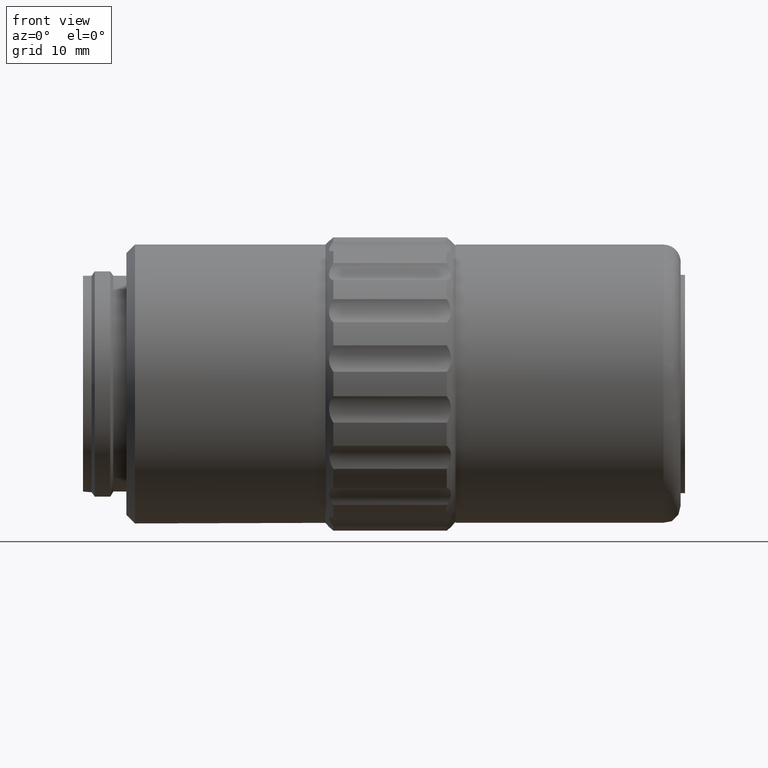
[diagram: clean part render]
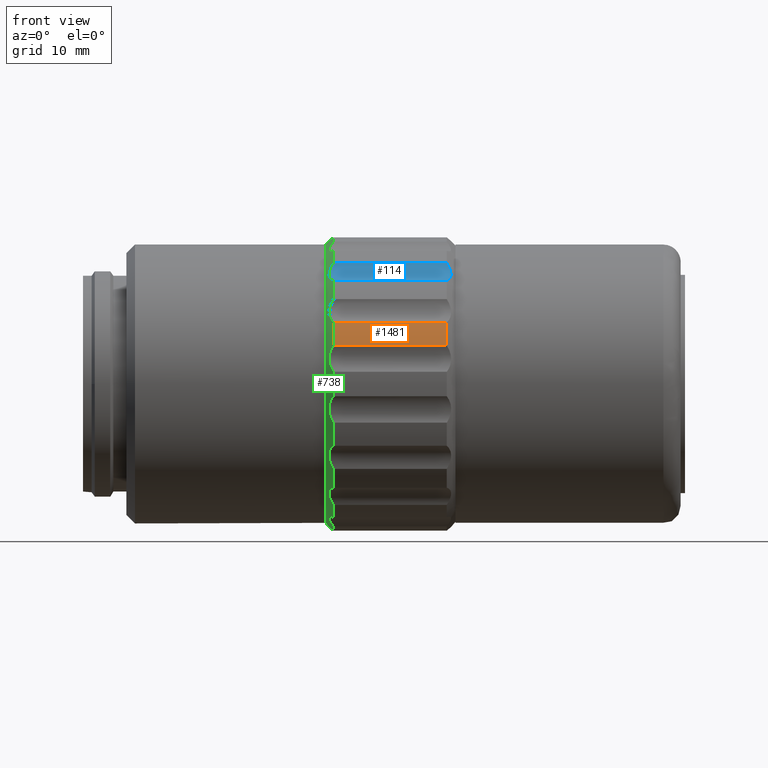
[diagram: same view with three faces highlighted in distinct colors, each labeled with its STEP entity id]
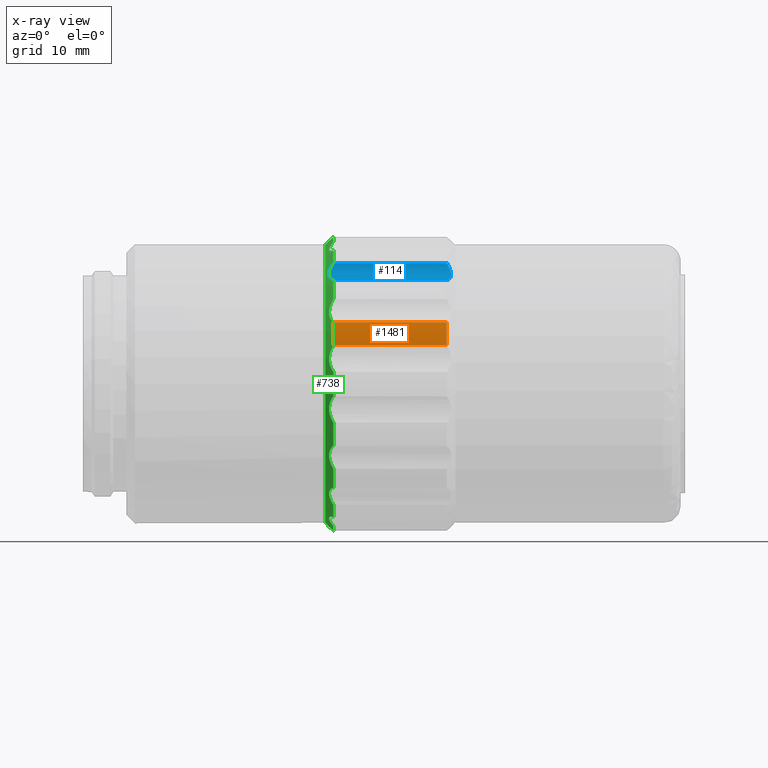
[diagram: x-ray of the same camera — body ghosted, the three highlighted faces saturated]
A machine part, front view with three faces highlighted in distinct colors.
The next image is the same camera in x-ray (body ghosted, the three faces saturated) — at least one of them is partly hidden behind the body in this view.
Their STEP definitions:

[orange] entity #1481 — the highlighted cylindrical surface (partial cylindrical patch) has radius 17 mm, axis along (-1, 0, 0).
#12 = EDGE_CURVE ( 'NONE', #287, #401, #1774, .T. ) ;
#137 = DIRECTION ( 'NONE',  ( -1.000000000000000000, 0.000000000000000000, 0.000000000000000000 ) ) ;
#184 = CARTESIAN_POINT ( 'NONE',  ( 53.58686043487880823, 29.61726367720591568, 4.463034991433923793 ) ) ;
#185 = AXIS2_PLACEMENT_3D ( 'NONE', #598, #1263, #437 ) ;
#287 = VERTEX_POINT ( 'NONE', #380 ) ;
#380 = CARTESIAN_POINT ( 'NONE',  ( 32.44685803487879383, 30.58621645913232356, 7.125210880294359228 ) ) ;
#401 = VERTEX_POINT ( 'NONE', #1611 ) ;
#423 = CARTESIAN_POINT ( 'NONE',  ( 25.94685803487879738, 30.58621645913229870, 7.125210880294325477 ) ) ;
#437 = DIRECTION ( 'NONE',  ( 0.000000000000000000, 1.000000000000000000, -7.105427357601001859E-15 ) ) ;
#479 = EDGE_LOOP ( 'NONE', ( #2091, #1925, #1167, #575 ) ) ;
#486 = DIRECTION ( 'NONE',  ( 0.000000000000000000, 0.000000000000000000, 1.000000000000000000 ) ) ;
#505 = DIRECTION ( 'NONE',  ( 1.000000000000000000, -0.000000000000000000, -0.000000000000000000 ) ) ;
#575 = ORIENTED_EDGE ( 'NONE', *, *, #1209, .F. ) ;
#598 = CARTESIAN_POINT ( 'NONE',  ( 32.44685803487880094, 46.02096199999999726, 0.000000000000000000 ) ) ;
#797 = VECTOR ( 'NONE', #137, 1000.000000000000000 ) ;
#825 = DIRECTION ( 'NONE',  ( 0.000000000000000000, 0.000000000000000000, 1.000000000000000000 ) ) ;
#888 = EDGE_CURVE ( 'NONE', #401, #2113, #979, .T. ) ;
#979 = CIRCLE ( 'NONE', #1502, 17.00000000000000000 ) ;
#1105 = CARTESIAN_POINT ( 'NONE',  ( 19.34685803487881017, 29.61726367720591924, 4.463034991433914911 ) ) ;
#1123 = DIRECTION ( 'NONE',  ( -1.000000000000000000, 0.000000000000000000, 0.000000000000000000 ) ) ;
#1146 = CYLINDRICAL_SURFACE ( 'NONE', #1256, 17.00000000000000000 ) ;
#1167 = ORIENTED_EDGE ( 'NONE', *, *, #1916, .T. ) ;
#1209 = EDGE_CURVE ( 'NONE', #287, #1350, #1917, .T. ) ;
#1256 = AXIS2_PLACEMENT_3D ( 'NONE', #1803, #1123, #486 ) ;
#1263 = DIRECTION ( 'NONE',  ( 1.000000000000000000, -0.000000000000000000, -0.000000000000000000 ) ) ;
#1350 = VERTEX_POINT ( 'NONE', #2036 ) ;
#1481 = ADVANCED_FACE ( 'NONE', ( #2139 ), #1146, .T. ) ;
#1502 = AXIS2_PLACEMENT_3D ( 'NONE', #2000, #505, #825 ) ;
#1530 = DIRECTION ( 'NONE',  ( 1.000000000000000000, -0.000000000000000000, -0.000000000000000000 ) ) ;
#1611 = CARTESIAN_POINT ( 'NONE',  ( 19.34685803487881017, 30.58621645913229514, 7.125210880294345905 ) ) ;
#1704 = VECTOR ( 'NONE', #1530, 1000.000000000000000 ) ;
#1774 = LINE ( 'NONE', #423, #797 ) ;
#1803 = CARTESIAN_POINT ( 'NONE',  ( 25.94685803487879738, 46.02096199999999726, 0.000000000000000000 ) ) ;
#1916 = EDGE_CURVE ( 'NONE', #2113, #1350, #2001, .T. ) ;
#1917 = CIRCLE ( 'NONE', #185, 16.99999999999998579 ) ;
#1925 = ORIENTED_EDGE ( 'NONE', *, *, #888, .T. ) ;
#2000 = CARTESIAN_POINT ( 'NONE',  ( 19.34685803487879596, 46.02096199999999726, 0.000000000000000000 ) ) ;
#2001 = LINE ( 'NONE', #184, #1704 ) ;
#2036 = CARTESIAN_POINT ( 'NONE',  ( 32.44685803487877962, 29.61726367720591568, 4.463034991433923793 ) ) ;
#2091 = ORIENTED_EDGE ( 'NONE', *, *, #12, .T. ) ;
#2113 = VERTEX_POINT ( 'NONE', #1105 ) ;
#2139 = FACE_OUTER_BOUND ( 'NONE', #479, .T. ) ;

[blue] entity #114 — the highlighted cylindrical surface (edge-blend (fillet) strip) has radius 3 mm, axis along (-1, 0, 0).
#35 = CARTESIAN_POINT ( 'NONE',  ( 18.90699781735015961, 34.94694193895058731, 12.31354536760547447 ) ) ;
#70 = VERTEX_POINT ( 'NONE', #1337 ) ;
#90 = CARTESIAN_POINT ( 'NONE',  ( 32.85273454226021528, 34.82682132065500724, 12.25041840084325884 ) ) ;
#114 = ADVANCED_FACE ( 'NONE', ( #1681 ), #1820, .F. ) ;
#204 = CARTESIAN_POINT ( 'NONE',  ( 18.85870489934780991, 35.62512614287680179, 12.82915025000380105 ) ) ;
#234 = CARTESIAN_POINT ( 'NONE',  ( 32.85210940846934591, 35.90193111884155996, 13.15323611948971916 ) ) ;
#315 = CARTESIAN_POINT ( 'NONE',  ( 25.94685803487879738, 33.95401115804232006, 11.97450196783886867 ) ) ;
#328 = DIRECTION ( 'NONE',  ( -1.000000000000000000, 0.000000000000000000, 0.000000000000000000 ) ) ;
#368 = CARTESIAN_POINT ( 'NONE',  ( 18.85967090375868338, 35.18529463847769989, 12.46115531925904918 ) ) ;
#395 = CARTESIAN_POINT ( 'NONE',  ( 32.93501117040978698, 35.19193332115172979, 12.46565831306566530 ) ) ;
#413 = VERTEX_POINT ( 'NONE', #1993 ) ;
#467 = LINE ( 'NONE', #315, #1919 ) ;
#483 = CARTESIAN_POINT ( 'NONE',  ( 18.94160666128826520, 34.82470436459485086, 12.24933554730702312 ) ) ;
#497 = CARTESIAN_POINT ( 'NONE',  ( 19.19974036611867874, 36.24294634268020587, 13.72771975950780998 ) ) ;
#550 = CARTESIAN_POINT ( 'NONE',  ( 32.44685803487877962, 33.95401115804232006, 11.97450196783887932 ) ) ;
#611 = VERTEX_POINT ( 'NONE', #1698 ) ;
#692 = AXIS2_PLACEMENT_3D ( 'NONE', #1980, #830, #1662 ) ;
#704 = ORIENTED_EDGE ( 'NONE', *, *, #1971, .F. ) ;
#706 = CARTESIAN_POINT ( 'NONE',  ( 32.59397570363888264, 34.19973174975009300, 12.01325914816415796 ) ) ;
#712 = CARTESIAN_POINT ( 'NONE',  ( 32.44685803487879383, 36.32378364731472686, 13.96297718956139100 ) ) ;
#754 = ORIENTED_EDGE ( 'NONE', *, *, #2026, .F. ) ;
#764 = CARTESIAN_POINT ( 'NONE',  ( 53.58686043487880823, 36.32378364731472686, 13.96297718956139100 ) ) ;
#810 = CARTESIAN_POINT ( 'NONE',  ( 19.34685803487880307, 33.95401115804232006, 11.97450196783887932 ) ) ;
#830 = DIRECTION ( 'NONE',  ( -1.000000000000000000, 0.000000000000000000, 0.000000000000000000 ) ) ;
#850 = CARTESIAN_POINT ( 'NONE',  ( 19.07538957795834378, 34.44935860872440259, 12.08340433005123060 ) ) ;
#858 = CARTESIAN_POINT ( 'NONE',  ( 18.90565193394949972, 35.81385022434189835, 13.03947610223928066 ) ) ;
#1017 = ORIENTED_EDGE ( 'NONE', *, *, #1423, .F. ) ;
#1081 = CARTESIAN_POINT ( 'NONE',  ( 32.71832649179926733, 36.13051957456375618, 13.49406587643664324 ) ) ;
#1153 = CARTESIAN_POINT ( 'NONE',  ( 19.34685803487878886, 36.32378364731472686, 13.96297718956139455 ) ) ;
#1157 = DIRECTION ( 'NONE',  ( 1.000000000000000000, -0.000000000000000000, -0.000000000000000000 ) ) ;
#1173 = CARTESIAN_POINT ( 'NONE',  ( 18.84671480941283050, 35.52309574243636803, 12.73030636577399832 ) ) ;
#1193 = CARTESIAN_POINT ( 'NONE',  ( 19.34685803487880307, 33.95401115804232006, 11.97450196783887932 ) ) ;
#1309 = CARTESIAN_POINT ( 'NONE',  ( 18.84700383090775588, 35.30292207748090760, 12.54587797077276079 ) ) ;
#1312 = LINE ( 'NONE', #764, #1649 ) ;
#1337 = CARTESIAN_POINT ( 'NONE',  ( 19.34685803487878886, 36.32378364731472686, 13.96297718956139455 ) ) ;
#1407 = CARTESIAN_POINT ( 'NONE',  ( 32.71993598786254864, 34.45315972681317618, 12.08479540418656484 ) ) ;
#1423 = EDGE_CURVE ( 'NONE', #413, #1483, #467, .T. ) ;
#1483 = VERTEX_POINT ( 'NONE', #810 ) ;
#1491 = EDGE_CURVE ( 'NONE', #70, #611, #1312, .T. ) ;
#1497 = CARTESIAN_POINT ( 'NONE',  ( 19.20000062573678434, 34.19929705588980795, 12.01319058448290278 ) ) ;
#1498 = ORIENTED_EDGE ( 'NONE', *, *, #1491, .F. ) ;
#1549 = CARTESIAN_POINT ( 'NONE',  ( 32.94671223884984101, 35.52685220674476341, 12.73377765964755071 ) ) ;
#1590 = B_SPLINE_CURVE_WITH_KNOTS ( 'NONE', 3,
 ( #1193, #1497, #850, #483, #35, #368, #1309, #1173, #204, #858, #1824, #1976, #497, #1153 ),
 .UNSPECIFIED., .F., .F.,
 ( 4, 2, 2, 2, 2, 2, 4 ),
 ( 0.000000000000000000, 0.0008570537395405546446, 0.001285580609310831967, 0.001714107479081109289, 0.002142634348851386612, 0.002571161218621663934, 0.003428214958162211640 ),
 .UNSPECIFIED. ) ;
#1649 = VECTOR ( 'NONE', #1157, 1000.000000000000000 ) ;
#1662 = DIRECTION ( 'NONE',  ( 0.000000000000000000, 0.000000000000000000, 1.000000000000000000 ) ) ;
#1681 = FACE_OUTER_BOUND ( 'NONE', #2075, .T. ) ;
#1698 = CARTESIAN_POINT ( 'NONE',  ( 32.44685803487879383, 36.32378364731472686, 13.96297718956139100 ) ) ;
#1717 = CARTESIAN_POINT ( 'NONE',  ( 32.59371544402083742, 36.24308934852178510, 13.72813594343332078 ) ) ;
#1724 = CARTESIAN_POINT ( 'NONE',  ( 32.93404516599891707, 35.63071352123775171, 12.83490613950239734 ) ) ;
#1820 = CYLINDRICAL_SURFACE ( 'NONE', #692, 3.000000000000000888 ) ;
#1824 = CARTESIAN_POINT ( 'NONE',  ( 18.94098152749737807, 35.90049711072168037, 13.15133936029216422 ) ) ;
#1877 = CARTESIAN_POINT ( 'NONE',  ( 32.94700126034476284, 35.30699293778219783, 12.54897458209229022 ) ) ;
#1886 = CARTESIAN_POINT ( 'NONE',  ( 32.88806413580808652, 34.95203119838304673, 12.31632407541566465 ) ) ;
#1919 = VECTOR ( 'NONE', #328, 1000.000000000000000 ) ;
#1960 = B_SPLINE_CURVE_WITH_KNOTS ( 'NONE', 3,
 ( #712, #1717, #1081, #234, #2061, #1724, #1549, #1877, #395, #1886, #90, #1407, #706, #550 ),
 .UNSPECIFIED., .F., .F.,
 ( 4, 2, 2, 2, 2, 2, 4 ),
 ( 1.734723475976807094E-18, 0.0008570537395405545362, 0.001285580609310830883, 0.001714107479081107338, 0.002142634348851384010, 0.002571161218621660031, 0.003428214958162204701 ),
 .UNSPECIFIED. ) ;
#1971 = EDGE_CURVE ( 'NONE', #1483, #70, #1590, .T. ) ;
#1976 = CARTESIAN_POINT ( 'NONE',  ( 19.07378008189501628, 36.12848957674106742, 13.49056406336131886 ) ) ;
#1980 = CARTESIAN_POINT ( 'NONE',  ( 53.58686043487880823, 33.48660361111249983, 14.93786664082010063 ) ) ;
#1993 = CARTESIAN_POINT ( 'NONE',  ( 32.44685803487877962, 33.95401115804232006, 11.97450196783887932 ) ) ;
#2026 = EDGE_CURVE ( 'NONE', #611, #413, #1960, .T. ) ;
#2061 = CARTESIAN_POINT ( 'NONE',  ( 32.88671825240744084, 35.81747045796283402, 13.04400552683793890 ) ) ;
#2075 = EDGE_LOOP ( 'NONE', ( #704, #1017, #754, #1498 ) ) ;

[green] entity #738 — the highlighted conical surface has half-angle 45 deg.
#11 = CARTESIAN_POINT ( 'NONE',  ( 18.90699781735015250, 46.58915913714510992, -16.55096588861032814 ) ) ;
#13 = ORIENTED_EDGE ( 'NONE', *, *, #1285, .T. ) ;
#20 = DIRECTION ( 'NONE',  ( 1.000000000000000000, -0.000000000000000000, -0.000000000000000000 ) ) ;
#25 = CARTESIAN_POINT ( 'NONE',  ( 19.34685803487878886, 30.58621645913231646, -7.125210880294334359 ) ) ;
#32 = VERTEX_POINT ( 'NONE', #1102 ) ;
#35 = CARTESIAN_POINT ( 'NONE',  ( 18.90699781735015961, 34.94694193895058731, 12.31354536760547447 ) ) ;
#37 = ORIENTED_EDGE ( 'NONE', *, *, #583, .T. ) ;
#38 = DIRECTION ( 'NONE',  ( 0.000000000000000000, -1.591863895602246436E-14, 1.000000000000000000 ) ) ;
#40 = CARTESIAN_POINT ( 'NONE',  ( 19.19974036611866808, 30.80386254956551539, -7.245672108642428277 ) ) ;
#47 = CIRCLE ( 'NONE', #2021, 17.00000000000000000 ) ;
#52 = CARTESIAN_POINT ( 'NONE',  ( 18.94098152749734254, 31.31202075032436127, -7.683006173254996796 ) ) ;
#57 = CARTESIAN_POINT ( 'NONE',  ( 18.85870489934782057, 31.86424395090688932, 8.499872551038858859 ) ) ;
#58 = CARTESIAN_POINT ( 'NONE',  ( 18.94160666128824744, 56.13999288115843456, 13.15323611948972449 ) ) ;
#59 = DIRECTION ( 'NONE',  ( 0.000000000000000000, 9.796085511398439970E-15, 1.000000000000000000 ) ) ;
#65 = CARTESIAN_POINT ( 'NONE',  ( 19.07378008189501628, 47.11445589906592346, 16.69313033811515012 ) ) ;
#66 = CARTESIAN_POINT ( 'NONE',  ( 19.34685803487881017, 61.45570754086770648, -7.125210880294338800 ) ) ;
#67 = DIRECTION ( 'NONE',  ( 1.000000000000000000, -0.000000000000000000, -0.000000000000000000 ) ) ;
#68 = CARTESIAN_POINT ( 'NONE',  ( 18.90565193394953170, 29.82024706863964880, 3.427813229224494496 ) ) ;
#69 = CARTESIAN_POINT ( 'NONE',  ( 18.85870489934777439, 51.93341409690916066, 15.41763307084375256 ) ) ;
#70 = VERTEX_POINT ( 'NONE', #1337 ) ;
#79 = CARTESIAN_POINT ( 'NONE',  ( 18.85967090375865141, 51.94119253261681024, -15.41567220399188187 ) ) ;
#83 = CARTESIAN_POINT ( 'NONE',  ( 18.90699781735017737, 29.82010887047673009, -3.433610011084523794 ) ) ;
#88 = ORIENTED_EDGE ( 'NONE', *, *, #918, .F. ) ;
#91 = CARTESIAN_POINT ( 'NONE',  ( 18.94160666128826520, 57.21721963540512235, -12.24933554730702490 ) ) ;
#92 = CARTESIAN_POINT ( 'NONE',  ( 19.34685803487879596, 46.02096199999999726, 0.000000000000000000 ) ) ;
#95 = ORIENTED_EDGE ( 'NONE', *, *, #660, .T. ) ;
#104 = CARTESIAN_POINT ( 'NONE',  ( 18.84700383090772391, 51.52699107420918523, 15.55503383706369291 ) ) ;
#106 = ORIENTED_EDGE ( 'NONE', *, *, #264, .T. ) ;
#107 = CARTESIAN_POINT ( 'NONE',  ( 19.34685803487881017, 61.45570754086771359, 7.125210880294364557 ) ) ;
#108 = DIRECTION ( 'NONE',  ( 0.000000000000000000, 8.163404592832033571E-15, 1.000000000000000000 ) ) ;
#110 = CARTESIAN_POINT ( 'NONE',  ( 18.90565193394956012, 60.07227310050244995, -8.762061639736757002 ) ) ;
#122 = CARTESIAN_POINT ( 'NONE',  ( 18.84671480941282695, 40.51021575157177779, 15.55305667428731553 ) ) ;
#128 = EDGE_CURVE ( 'NONE', #2016, #1663, #1339, .T. ) ;
#130 = CARTESIAN_POINT ( 'NONE',  ( 19.20000062573681632, 59.90445580054583274, 9.555998637511375904 ) ) ;
#132 = CARTESIAN_POINT ( 'NONE',  ( 18.90699781735015605, 35.81747045796282691, -13.04400552683793713 ) ) ;
#133 = CARTESIAN_POINT ( 'NONE',  ( 18.85967090375863719, 40.64711861377924862, -15.61454086166568800 ) ) ;
#144 = AXIS2_PLACEMENT_3D ( 'NONE', #92, #389, #1409 ) ;
#158 = VERTEX_POINT ( 'NONE', #1793 ) ;
#162 = ORIENTED_EDGE ( 'NONE', *, *, #1135, .T. ) ;
#169 = EDGE_CURVE ( 'NONE', #1579, #2020, #558, .T. ) ;
#186 = VERTEX_POINT ( 'NONE', #1147 ) ;
#198 = DIRECTION ( 'NONE',  ( 0.000000000000000000, 8.163404592832032979E-16, 1.000000000000000000 ) ) ;
#200 = CARTESIAN_POINT ( 'NONE',  ( 19.20000062573680211, 62.79881279935865734, -1.603818139432592549 ) ) ;
#204 = CARTESIAN_POINT ( 'NONE',  ( 18.85870489934780991, 35.62512614287680179, 12.82915025000380105 ) ) ;
#213 = CARTESIAN_POINT ( 'NONE',  ( 18.90565193394949972, 46.58347441928597732, 16.54982318938171204 ) ) ;
#215 = CARTESIAN_POINT ( 'NONE',  ( 19.34685803487881017, 32.13297559990991914, 9.804276299192830280 ) ) ;
#217 = CIRCLE ( 'NONE', #1364, 17.00000000000002132 ) ;
#218 = CARTESIAN_POINT ( 'NONE',  ( 18.94160666128820480, 32.01351164868651722, -8.899086528648508576 ) ) ;
#219 = AXIS2_PLACEMENT_3D ( 'NONE', #687, #20, #198 ) ;
#220 = CARTESIAN_POINT ( 'NONE',  ( 19.34685803487881728, 62.96184413496547450, -1.416514203673302941 ) ) ;
#222 = CARTESIAN_POINT ( 'NONE',  ( 18.90565193394953880, 31.96965089949758365, 8.762061639736753449 ) ) ;
#223 = CARTESIAN_POINT ( 'NONE',  ( 19.34685803487879596, 46.02096199999999726, 0.000000000000000000 ) ) ;
#224 = CARTESIAN_POINT ( 'NONE',  ( 18.90565193394946775, 51.15274612974334900, -15.74413730464012318 ) ) ;
#225 = CARTESIAN_POINT ( 'NONE',  ( 19.07538957795835088, 29.38953693794697841, 1.818341456876844786 ) ) ;
#228 = CARTESIAN_POINT ( 'NONE',  ( 18.94098152749734965, 52.35012353516404460, 15.34024937236955033 ) ) ;
#232 = B_SPLINE_CURVE_WITH_KNOTS ( 'NONE', 3,
 ( #416, #1265, #919, #2073, #1107, #430, #727, #122, #235, #892, #772, #1560, #1398, #1751 ),
 .UNSPECIFIED., .F., .F.,
 ( 4, 2, 2, 2, 2, 2, 4 ),
 ( 0.000000000000000000, 0.0008570537395405683056, 0.001285580609310852567, 0.001714107479081136611, 0.002142634348851422607, 0.002571161218621709037, 0.003428214958162284064 ),
 .UNSPECIFIED. ) ;
#235 = CARTESIAN_POINT ( 'NONE',  ( 18.85870489934780281, 40.63989956541260540, 15.61104309072567098 ) ) ;
#236 = CARTESIAN_POINT ( 'NONE',  ( 18.85870489934776018, 51.40202443458736070, -15.61104309072563190 ) ) ;
#254 = CARTESIAN_POINT ( 'NONE',  ( 19.07378008189504826, 61.02438389102542260, 7.399571673583211329 ) ) ;
#260 = CARTESIAN_POINT ( 'NONE',  ( 18.85967090375864075, 51.39480538622073880, 15.61454086166569333 ) ) ;
#264 = EDGE_CURVE ( 'NONE', #1591, #2113, #1068, .T. ) ;
#266 = CARTESIAN_POINT ( 'NONE',  ( 19.19974036611868939, 39.02141578089251084, -15.33186983759483901 ) ) ;
#273 = CARTESIAN_POINT ( 'NONE',  ( 19.34685803487879596, 46.02096199999999726, 0.000000000000000000 ) ) ;
#276 = CARTESIAN_POINT ( 'NONE',  ( 19.34685803487882438, 59.90894840009008959, -9.804276299192844490 ) ) ;
#282 = EDGE_CURVE ( 'NONE', #817, #958, #1353, .T. ) ;
#285 = AXIS2_PLACEMENT_3D ( 'NONE', #1942, #2064, #405 ) ;
#286 = CIRCLE ( 'NONE', #1019, 17.00000000000000000 ) ;
#291 = CARTESIAN_POINT ( 'NONE',  ( 19.34685803487878175, 41.68421451916363907, -16.43753695927278713 ) ) ;
#293 = CARTESIAN_POINT ( 'NONE',  ( 19.34685803487880307, 62.42466032279407528, -4.463034991433911358 ) ) ;
#298 = ORIENTED_EDGE ( 'NONE', *, *, #821, .T. ) ;
#301 = CARTESIAN_POINT ( 'NONE',  ( 18.94098152749739228, 34.82682132065498593, -12.25041840084324996 ) ) ;
#303 = VERTEX_POINT ( 'NONE', #293 ) ;
#331 = CARTESIAN_POINT ( 'NONE',  ( 19.19974036611870361, 34.19973174975010011, -12.01325914816416507 ) ) ;
#332 = DIRECTION ( 'NONE',  ( -1.000000000000000000, -0.000000000000000000, -0.000000000000000000 ) ) ;
#333 = CARTESIAN_POINT ( 'NONE',  ( 19.34685803487881728, 59.90894840009004696, 9.804276299192840938 ) ) ;
#334 = VERTEX_POINT ( 'NONE', #1109 ) ;
#342 = VERTEX_POINT ( 'NONE', #1577 ) ;
#346 = CARTESIAN_POINT ( 'NONE',  ( 18.90565193394950327, 45.45844958071402431, -16.54982318938171559 ) ) ;
#360 = CARTESIAN_POINT ( 'NONE',  ( 18.84671480941278077, 31.66112224774806450, -8.127785578975515790 ) ) ;
#361 = CARTESIAN_POINT ( 'NONE',  ( 18.84700383090778075, 62.29579183602518100, -2.721276841238320809 ) ) ;
#366 = B_SPLINE_CURVE_WITH_KNOTS ( 'NONE', 3,
 ( #874, #698, #1542, #58, #1378, #2042, #551, #1212, #1690, #560, #1878, #1848, #883, #1224 ),
 .UNSPECIFIED., .F., .F.,
 ( 4, 2, 2, 2, 2, 2, 4 ),
 ( 3.469446951953614189E-18, 0.0008570537395405549699, 0.001285580609310832184, 0.001714107479081109506, 0.002142634348851387045, 0.002571161218621663934, 0.003428214958162216410 ),
 .UNSPECIFIED. ) ;
#368 = CARTESIAN_POINT ( 'NONE',  ( 18.85967090375868338, 35.18529463847769989, 12.46115531925904918 ) ) ;
#369 = EDGE_LOOP ( 'NONE', ( #1563, #37, #13, #670, #638, #1905, #2002, #503, #1401, #1977, #1841, #1488, #762, #665, #298, #88, #1652, #1239, #1276, #633, #106, #860, #1126, #1375, #1394, #812, #398, #681, #1967, #565, #851, #2084, #95, #975, #162, #1801 ) ) ;
#373 = DIRECTION ( 'NONE',  ( 0.000000000000000000, 1.795949010423047196E-14, 1.000000000000000000 ) ) ;
#374 = VERTEX_POINT ( 'NONE', #1764 ) ;
#375 = EDGE_CURVE ( 'NONE', #1022, #1625, #2141, .T. ) ;
#377 = CARTESIAN_POINT ( 'NONE',  ( 19.34685803487882438, 59.90894840009008959, -9.804276299192844490 ) ) ;
#384 = CARTESIAN_POINT ( 'NONE',  ( 19.34685803487879596, 38.77725821771979042, -15.37949139323468373 ) ) ;
#385 = CARTESIAN_POINT ( 'NONE',  ( 18.94098152749737451, 46.72175410136633644, 16.57981987161946691 ) ) ;
#389 = DIRECTION ( 'NONE',  ( 1.000000000000000000, -0.000000000000000000, -0.000000000000000000 ) ) ;
#391 = CARTESIAN_POINT ( 'NONE',  ( 18.94098152749740649, 29.81471811820887652, 3.569201001427933839 ) ) ;
#392 = CARTESIAN_POINT ( 'NONE',  ( 19.34685803487881017, 29.61726367720593345, -4.463034991433935339 ) ) ;
#398 = ORIENTED_EDGE ( 'NONE', *, *, #737, .T. ) ;
#399 = CARTESIAN_POINT ( 'NONE',  ( 19.20000062573680211, 29.24311120064135139, 1.603818139432590772 ) ) ;
#401 = VERTEX_POINT ( 'NONE', #1611 ) ;
#403 = CARTESIAN_POINT ( 'NONE',  ( 19.34685803487879596, 53.26466578228020410, 15.37949139323468017 ) ) ;
#404 = CARTESIAN_POINT ( 'NONE',  ( 18.94098152749740649, 32.01281285169061164, 8.896813698364450573 ) ) ;
#405 = DIRECTION ( 'NONE',  ( 0.000000000000000000, 0.000000000000000000, -1.000000000000000000 ) ) ;
#406 = CARTESIAN_POINT ( 'NONE',  ( 19.19974036611866097, 50.51413447943100010, -16.24411527478352468 ) ) ;
#408 = CARTESIAN_POINT ( 'NONE',  ( 18.94098152749741359, 62.47058842444241122, 2.188910012077404321 ) ) ;
#412 = AXIS2_PLACEMENT_3D ( 'NONE', #1296, #599, #449 ) ;
#414 = CARTESIAN_POINT ( 'NONE',  ( 18.85870489934783834, 60.46042658267627701, 8.010141189208864532 ) ) ;
#416 = CARTESIAN_POINT ( 'NONE',  ( 19.34685803487879596, 38.77725821771979753, 15.37949139323466952 ) ) ;
#426 = AXIS2_PLACEMENT_3D ( 'NONE', #273, #1952, #971 ) ;
#429 = CARTESIAN_POINT ( 'NONE',  ( 18.44685803487879738, 29.92096199999999584, 0.000000000000000000 ) ) ;
#430 = CARTESIAN_POINT ( 'NONE',  ( 18.85967090375866917, 40.10073146738318428, 15.41567220399190674 ) ) ;
#431 = CARTESIAN_POINT ( 'NONE',  ( 19.07378008189500562, 39.28402702137712765, -15.31241445645989785 ) ) ;
#441 = CARTESIAN_POINT ( 'NONE',  ( 18.84700383090775944, 56.73900192251910113, -12.54587797077276257 ) ) ;
#442 = CARTESIAN_POINT ( 'NONE',  ( 18.85967090375871891, 60.46512478920963929, -8.003639195957678254 ) ) ;
#449 = DIRECTION ( 'NONE',  ( 0.000000000000000000, 0.000000000000000000, 1.000000000000000000 ) ) ;
#458 = CONICAL_SURFACE ( 'NONE', #285, 17.00000000000002132, 0.7853981633974482790 ) ;
#461 = CARTESIAN_POINT ( 'NONE',  ( 19.07538957795836509, 59.93018010859524480, 9.297543592584476713 ) ) ;
#473 = CARTESIAN_POINT ( 'NONE',  ( 18.94098152749734965, 39.69180046483594992, -15.34024937236954855 ) ) ;
#483 = CARTESIAN_POINT ( 'NONE',  ( 18.94160666128826520, 34.82470436459485086, 12.24933554730702312 ) ) ;
#497 = CARTESIAN_POINT ( 'NONE',  ( 19.19974036611867874, 36.24294634268020587, 13.72771975950780998 ) ) ;
#502 = CARTESIAN_POINT ( 'NONE',  ( 18.94160666128825099, 46.72407182862871622, -16.58035111081103352 ) ) ;
#503 = ORIENTED_EDGE ( 'NONE', *, *, #1658, .F. ) ;
#505 = DIRECTION ( 'NONE',  ( 1.000000000000000000, -0.000000000000000000, -0.000000000000000000 ) ) ;
#521 = EDGE_CURVE ( 'NONE', #1235, #1365, #2130, .T. ) ;
#522 = CIRCLE ( 'NONE', #653, 17.00000000000000000 ) ;
#524 = CARTESIAN_POINT ( 'NONE',  ( 19.07538957795836154, 62.65238706205304453, -1.818341456876855444 ) ) ;
#537 = CARTESIAN_POINT ( 'NONE',  ( 19.34685803487879596, 46.02096199999999726, 0.000000000000000000 ) ) ;
#538 = EDGE_CURVE ( 'NONE', #1747, #1090, #1746, .T. ) ;
#542 = CARTESIAN_POINT ( 'NONE',  ( 18.84700383090774167, 45.87480198847890733, 16.50012336588021356 ) ) ;
#545 = CARTESIAN_POINT ( 'NONE',  ( 19.07378008189505536, 29.77132104384356737, 3.975612932441877856 ) ) ;
#546 = CARTESIAN_POINT ( 'NONE',  ( 18.85870489934783123, 62.23105311343569923, -3.145384777660002573 ) ) ;
#547 = VERTEX_POINT ( 'NONE', #66 ) ;
#551 = CARTESIAN_POINT ( 'NONE',  ( 18.84700383090775233, 56.51507179325524532, 12.73377765964754893 ) ) ;
#552 = CARTESIAN_POINT ( 'NONE',  ( 19.34685803487878886, 55.71814035268528187, 13.96297718956139278 ) ) ;
#554 = CARTESIAN_POINT ( 'NONE',  ( 18.90565193394947130, 52.20992366875024970, 15.35935614810682637 ) ) ;
#556 = CARTESIAN_POINT ( 'NONE',  ( 19.34685803487879596, 46.02096199999999726, 0.000000000000000000 ) ) ;
#557 = CARTESIAN_POINT ( 'NONE',  ( 18.94160666128825099, 45.31785217137125699, 16.58035111081102997 ) ) ;
#558 = CIRCLE ( 'NONE', #1218, 17.00000000000000000 ) ;
#560 = CARTESIAN_POINT ( 'NONE',  ( 18.90565193394951393, 57.08989280161695490, 12.31632407541565755 ) ) ;
#563 = CARTESIAN_POINT ( 'NONE',  ( 19.19974036611871426, 29.70655927031906884, 4.230856126619377378 ) ) ;
#565 = ORIENTED_EDGE ( 'NONE', *, *, #521, .F. ) ;
#570 = FACE_OUTER_BOUND ( 'NONE', #369, .T. ) ;
#571 = CARTESIAN_POINT ( 'NONE',  ( 19.34685803487881017, 44.47420285922230931, -16.92948717948720372 ) ) ;
#573 = CARTESIAN_POINT ( 'NONE',  ( 19.34685803487881017, 62.96184413496550292, 1.416514203673278960 ) ) ;
#580 = DIRECTION ( 'NONE',  ( 1.000000000000000000, 0.000000000000000000, 0.000000000000000000 ) ) ;
#583 = EDGE_CURVE ( 'NONE', #1625, #186, #835, .T. ) ;
#589 = CARTESIAN_POINT ( 'NONE',  ( 19.20000062573680211, 57.84262694411021499, -12.01319058448290278 ) ) ;
#599 = DIRECTION ( 'NONE',  ( 1.000000000000000000, -0.000000000000000000, -0.000000000000000000 ) ) ;
#600 = CARTESIAN_POINT ( 'NONE',  ( 19.34685803487878886, 55.71814035268526766, -13.96297718956139278 ) ) ;
#607 = CARTESIAN_POINT ( 'NONE',  ( 18.85967090375871891, 60.17439826102906153, 8.507192313874583078 ) ) ;
#619 = AXIS2_PLACEMENT_3D ( 'NONE', #1628, #791, #108 ) ;
#620 = CARTESIAN_POINT ( 'NONE',  ( 19.07538957795836509, 61.02747999826901548, -7.396964432529753886 ) ) ;
#623 = CARTESIAN_POINT ( 'NONE',  ( 18.85870489934783123, 29.71267404596758155, -2.588482820839966614 ) ) ;
#633 = ORIENTED_EDGE ( 'NONE', *, *, #968, .T. ) ;
#638 = ORIENTED_EDGE ( 'NONE', *, *, #1836, .T. ) ;
#642 = CARTESIAN_POINT ( 'NONE',  ( 18.90699781735010632, 40.89412893152618977, -15.74715537868997828 ) ) ;
#647 = CARTESIAN_POINT ( 'NONE',  ( 19.20000062573679145, 47.35495267834149047, -16.80145764331209790 ) ) ;
#653 = AXIS2_PLACEMENT_3D ( 'NONE', #1888, #67, #59 ) ;
#657 = CARTESIAN_POINT ( 'NONE',  ( 18.84700383090774878, 46.16712201152108719, -16.50012336588022066 ) ) ;
#660 = EDGE_CURVE ( 'NONE', #1747, #342, #366, .T. ) ;
#662 = CARTESIAN_POINT ( 'NONE',  ( 18.84671480941283406, 35.30699293778216941, -12.54897458209228844 ) ) ;
#665 = ORIENTED_EDGE ( 'NONE', *, *, #859, .F. ) ;
#670 = ORIENTED_EDGE ( 'NONE', *, *, #1303, .F. ) ;
#681 = ORIENTED_EDGE ( 'NONE', *, *, #1519, .F. ) ;
#684 = CARTESIAN_POINT ( 'NONE',  ( 19.34685803487879596, 38.77725821771979042, -15.37949139323468373 ) ) ;
#687 = CARTESIAN_POINT ( 'NONE',  ( 19.34685803487879596, 46.02096199999999726, 0.000000000000000000 ) ) ;
#688 = CIRCLE ( 'NONE', #1424, 16.10000000000000142 ) ;
#693 = AXIS2_PLACEMENT_3D ( 'NONE', #223, #1867, #1032 ) ;
#696 = CARTESIAN_POINT ( 'NONE',  ( 19.34685803487881017, 47.56772114077768521, -16.92948717948718951 ) ) ;
#698 = CARTESIAN_POINT ( 'NONE',  ( 19.20000062573676658, 55.79883465147822363, 13.72813594343331900 ) ) ;
#707 = CARTESIAN_POINT ( 'NONE',  ( 19.34685803487879596, 46.02096199999999726, 0.000000000000000000 ) ) ;
#715 = B_SPLINE_CURVE_WITH_KNOTS ( 'NONE', 3,
 ( #1761, #589, #1910, #91, #748, #1254, #441, #1769, #1073, #906, #1934, #1408, #928, #600 ),
 .UNSPECIFIED., .F., .F.,
 ( 4, 2, 2, 2, 2, 2, 4 ),
 ( 7.949501638480626889E-18, 0.0008570537395405634267, 0.001285580609310841291, 0.001714107479081119047, 0.002142634348851396586, 0.002571161218621674342, 0.003428214958162214675 ),
 .UNSPECIFIED. ) ;
#717 = CARTESIAN_POINT ( 'NONE',  ( 19.20000062573679855, 29.70640130127867096, -4.231266864385912818 ) ) ;
#722 = EDGE_CURVE ( 'NONE', #1579, #1854, #715, .T. ) ;
#726 = CIRCLE ( 'NONE', #838, 17.00000000000000000 ) ;
#727 = CARTESIAN_POINT ( 'NONE',  ( 18.84700383090773812, 40.24024195723007580, 15.45505450088586308 ) ) ;
#728 = CARTESIAN_POINT ( 'NONE',  ( 19.34685803487878175, 50.35770948083634124, -16.43753695927276937 ) ) ;
#731 = CARTESIAN_POINT ( 'NONE',  ( 19.07378008189505536, 62.65036940188183223, 1.821850393098588539 ) ) ;
#732 = CARTESIAN_POINT ( 'NONE',  ( 18.85967090375870825, 29.81145125225689441, -3.153385542406657915 ) ) ;
#737 = EDGE_CURVE ( 'NONE', #158, #836, #232, .T. ) ;
#738 = ADVANCED_FACE ( 'NONE', ( #570, #1442 ), #458, .T. ) ;
#740 = CARTESIAN_POINT ( 'NONE',  ( 19.07378008189497720, 50.70280068296953147, -16.06040833662841649 ) ) ;
#746 = CARTESIAN_POINT ( 'NONE',  ( 18.90565193394954235, 60.63478551978838738, 7.787761549644985237 ) ) ;
#748 = CARTESIAN_POINT ( 'NONE',  ( 18.90699781735016671, 57.09498206104942142, -12.31354536760547980 ) ) ;
#749 = CARTESIAN_POINT ( 'NONE',  ( 18.44685803487879738, 46.02096199999999726, 0.000000000000000000 ) ) ;
#751 = CARTESIAN_POINT ( 'NONE',  ( 18.94160666128827231, 62.22732658115023696, 3.571575765922809342 ) ) ;
#762 = ORIENTED_EDGE ( 'NONE', *, *, #1874, .T. ) ;
#763 = CARTESIAN_POINT ( 'NONE',  ( 18.85967090375870825, 62.23047274774310722, 3.153385542406657915 ) ) ;
#770 = CARTESIAN_POINT ( 'NONE',  ( 18.94160666128829007, 60.02841235131359809, 8.899086528648503247 ) ) ;
#772 = CARTESIAN_POINT ( 'NONE',  ( 18.94098152749739583, 41.00885879755391983, 15.81961940227120600 ) ) ;
#773 = CARTESIAN_POINT ( 'NONE',  ( 19.07378008189506247, 59.93088999195954614, -9.293558664531964553 ) ) ;
#791 = DIRECTION ( 'NONE',  ( 1.000000000000000000, -0.000000000000000000, -0.000000000000000000 ) ) ;
#794 = DIRECTION ( 'NONE',  ( 1.000000000000000000, -0.000000000000000000, -0.000000000000000000 ) ) ;
#795 = CARTESIAN_POINT ( 'NONE',  ( 18.85870489934777439, 40.10850990309084096, -15.41763307084374190 ) ) ;
#800 = AXIS2_PLACEMENT_3D ( 'NONE', #961, #794, #1464 ) ;
#801 = CARTESIAN_POINT ( 'NONE',  ( 19.34685803487879596, 46.02096199999999726, 0.000000000000000000 ) ) ;
#810 = CARTESIAN_POINT ( 'NONE',  ( 19.34685803487880307, 33.95401115804232006, 11.97450196783887932 ) ) ;
#811 = CARTESIAN_POINT ( 'NONE',  ( 19.07538957795832602, 47.11826188967380347, -16.69450802511422793 ) ) ;
#812 = ORIENTED_EDGE ( 'NONE', *, *, #2090, .F. ) ;
#817 = VERTEX_POINT ( 'NONE', #1151 ) ;
#821 = EDGE_CURVE ( 'NONE', #334, #1414, #1400, .T. ) ;
#824 = CARTESIAN_POINT ( 'NONE',  ( 19.07538957795832246, 36.13051957456375618, -13.49406587643664501 ) ) ;
#825 = DIRECTION ( 'NONE',  ( 0.000000000000000000, 0.000000000000000000, 1.000000000000000000 ) ) ;
#829 = CARTESIAN_POINT ( 'NONE',  ( 19.34685803487881017, 29.61726367720593345, -4.463034991433935339 ) ) ;
#831 = CARTESIAN_POINT ( 'NONE',  ( 19.07378008189504826, 62.27060295615642360, -3.975612932441878744 ) ) ;
#835 = CIRCLE ( 'NONE', #2056, 17.00000000000000000 ) ;
#836 = VERTEX_POINT ( 'NONE', #1283 ) ;
#838 = AXIS2_PLACEMENT_3D ( 'NONE', #1476, #1665, #2144 ) ;
#845 = CARTESIAN_POINT ( 'NONE',  ( 19.07378008189503049, 44.92746810093404974, -16.69313033811515012 ) ) ;
#850 = CARTESIAN_POINT ( 'NONE',  ( 19.07538957795834378, 34.44935860872440259, 12.08340433005123060 ) ) ;
#851 = ORIENTED_EDGE ( 'NONE', *, *, #1384, .T. ) ;
#854 = CARTESIAN_POINT ( 'NONE',  ( 18.85870489934775662, 31.58149741732382054, -8.010141189208832557 ) ) ;
#855 = CARTESIAN_POINT ( 'NONE',  ( 19.19974036611872137, 62.33536472968093278, -4.230856126619383595 ) ) ;
#858 = CARTESIAN_POINT ( 'NONE',  ( 18.90565193394949972, 35.81385022434189835, 13.03947610223928066 ) ) ;
#859 = EDGE_CURVE ( 'NONE', #334, #1120, #1119, .T. ) ;
#860 = ORIENTED_EDGE ( 'NONE', *, *, #888, .F. ) ;
#864 = CARTESIAN_POINT ( 'NONE',  ( 19.34685803487878175, 32.13297559991000441, -9.804276299192858701 ) ) ;
#871 = CARTESIAN_POINT ( 'NONE',  ( 19.19974036611870361, 47.35457561164053431, 16.80123075031171709 ) ) ;
#872 = B_SPLINE_CURVE_WITH_KNOTS ( 'NONE', 3,
 ( #392, #717, #1391, #1893, #83, #732, #1403, #1948, #623, #946, #1290, #978, #1480, #1613 ),
 .UNSPECIFIED., .F., .F.,
 ( 4, 2, 2, 2, 2, 2, 4 ),
 ( 1.514782153580211930E-17, 0.0008570537395405600656, 0.001285580609310832184, 0.001714107479081104302, 0.002142634348851376637, 0.002571161218621648321, 0.003428214958162189522 ),
 .UNSPECIFIED. ) ;
#874 = CARTESIAN_POINT ( 'NONE',  ( 19.34685803487878886, 55.71814035268528187, 13.96297718956139278 ) ) ;
#881 = DIRECTION ( 'NONE',  ( 1.000000000000000000, -0.000000000000000000, -0.000000000000000000 ) ) ;
#882 = CARTESIAN_POINT ( 'NONE',  ( 19.07538957795834023, 44.92366211032618395, 16.69450802511422793 ) ) ;
#883 = CARTESIAN_POINT ( 'NONE',  ( 19.19974036611871071, 57.84219225024989441, 12.01325914816416329 ) ) ;
#885 = CARTESIAN_POINT ( 'NONE',  ( 18.90699781735018092, 29.62277607563511239, 2.314480119284873627 ) ) ;
#888 = EDGE_CURVE ( 'NONE', #401, #2113, #979, .T. ) ;
#891 = CARTESIAN_POINT ( 'NONE',  ( 19.19974036611872137, 32.13747616120598849, 9.555558641669250619 ) ) ;
#892 = CARTESIAN_POINT ( 'NONE',  ( 18.90565193394951393, 40.88917787025663841, 15.74413730464017647 ) ) ;
#897 = CARTESIAN_POINT ( 'NONE',  ( 19.34685803487879596, 53.26466578228020410, 15.37949139323468017 ) ) ;
#906 = CARTESIAN_POINT ( 'NONE',  ( 18.90565193394950683, 56.22807377565811748, -13.03947610223928244 ) ) ;
#908 = CIRCLE ( 'NONE', #2131, 17.00000000000000000 ) ;
#910 = CARTESIAN_POINT ( 'NONE',  ( 19.34685803487881017, 62.42466032279406107, 4.463034991433929122 ) ) ;
#914 = B_SPLINE_CURVE_WITH_KNOTS ( 'NONE', 3,
 ( #1042, #920, #1379, #1543, #1213, #79, #1575, #1255, #236, #224, #1726, #740, #406, #728 ),
 .UNSPECIFIED., .F., .F.,
 ( 4, 2, 2, 2, 2, 2, 4 ),
 ( 0.000000000000000000, 0.0008570537395405729677, 0.001285580609310859506, 0.001714107479081145935, 0.002142634348851432148, 0.002571161218621719011, 0.003428214958162278860 ),
 .UNSPECIFIED. ) ;
#916 = CARTESIAN_POINT ( 'NONE',  ( 18.84700383090778786, 60.23740799466897755, 8.376639965934806753 ) ) ;
#918 = EDGE_CURVE ( 'NONE', #817, #1414, #47, .T. ) ;
#919 = CARTESIAN_POINT ( 'NONE',  ( 19.07538957795832246, 39.27997936338323370, 15.31240733331346959 ) ) ;
#920 = CARTESIAN_POINT ( 'NONE',  ( 19.20000062573676303, 53.02094014788040255, -15.33195408286590933 ) ) ;
#928 = CARTESIAN_POINT ( 'NONE',  ( 19.19974036611867874, 55.79897765731979575, -13.72771975950780998 ) ) ;
#934 = CARTESIAN_POINT ( 'NONE',  ( 19.20000062573675237, 50.51385775461103833, 16.24445744886881116 ) ) ;
#946 = CARTESIAN_POINT ( 'NONE',  ( 18.90565193394954946, 29.62488855559159973, -2.319880045867564800 ) ) ;
#957 = EDGE_CURVE ( 'NONE', #1022, #1249, #726, .T. ) ;
#958 = VERTEX_POINT ( 'NONE', #25 ) ;
#961 = CARTESIAN_POINT ( 'NONE',  ( 19.34685803487879596, 46.02096199999999726, 0.000000000000000000 ) ) ;
#968 = EDGE_CURVE ( 'NONE', #374, #1591, #217, .T. ) ;
#971 = DIRECTION ( 'NONE',  ( 0.000000000000000000, 8.163404592832032979E-16, 1.000000000000000000 ) ) ;
#974 = CARTESIAN_POINT ( 'NONE',  ( 18.85870489934784189, 60.17768004909312651, -8.499872551038867741 ) ) ;
#975 = ORIENTED_EDGE ( 'NONE', *, *, #1037, .F. ) ;
#978 = CARTESIAN_POINT ( 'NONE',  ( 19.07378008189505891, 29.39155459811816229, -1.821850393098590537 ) ) ;
#979 = CIRCLE ( 'NONE', #1502, 17.00000000000000000 ) ;
#1004 = CARTESIAN_POINT ( 'NONE',  ( 18.85967090375867272, 46.31168852818060344, -16.51083150983224002 ) ) ;
#1015 = CARTESIAN_POINT ( 'NONE',  ( 18.94160666128827231, 62.47151406203237656, -2.186719745017577043 ) ) ;
#1019 = AXIS2_PLACEMENT_3D ( 'NONE', #1385, #881, #1705 ) ;
#1020 = DIRECTION ( 'NONE',  ( 0.000000000000000000, 0.000000000000000000, 1.000000000000000000 ) ) ;
#1022 = VERTEX_POINT ( 'NONE', #1192 ) ;
#1026 = CARTESIAN_POINT ( 'NONE',  ( 18.90565193394953170, 62.22167693136037769, -3.427813229224494940 ) ) ;
#1029 = DIRECTION ( 'NONE',  ( 1.000000000000000000, -0.000000000000000000, -0.000000000000000000 ) ) ;
#1032 = DIRECTION ( 'NONE',  ( 0.000000000000000000, -3.673532066774414791E-15, 1.000000000000000000 ) ) ;
#1037 = EDGE_CURVE ( 'NONE', #1973, #342, #286, .T. ) ;
#1038 = EDGE_CURVE ( 'NONE', #2016, #1622, #1991, .T. ) ;
#1040 = CARTESIAN_POINT ( 'NONE',  ( 18.85967090375866206, 45.73023547181937687, 16.51083150983223291 ) ) ;
#1042 = CARTESIAN_POINT ( 'NONE',  ( 19.34685803487879596, 53.26466578228018989, -15.37949139323468017 ) ) ;
#1047 = AXIS2_PLACEMENT_3D ( 'NONE', #1718, #1531, #38 ) ;
#1050 = CARTESIAN_POINT ( 'NONE',  ( 18.84700383090778431, 31.65835599380996968, 8.123483399945440553 ) ) ;
#1060 = CARTESIAN_POINT ( 'NONE',  ( 19.07378008189505536, 32.11103400804049102, 9.293558664531953895 ) ) ;
#1064 = CARTESIAN_POINT ( 'NONE',  ( 18.84700383090770259, 31.80451600533113066, -8.376639965934788989 ) ) ;
#1068 = B_SPLINE_CURVE_WITH_KNOTS ( 'NONE', 3,
 ( #1720, #399, #225, #1348, #885, #1206, #2035, #1553, #1712, #68, #391, #545, #563, #1380 ),
 .UNSPECIFIED., .F., .F.,
 ( 4, 2, 2, 2, 2, 2, 4 ),
 ( 8.322266947800291141E-18, 0.0008570537395405600656, 0.001285580609310831316, 0.001714107479081103001, 0.002142634348851374902, 0.002571161218621645719, 0.003428214958162191690 ),
 .UNSPECIFIED. ) ;
#1073 = CARTESIAN_POINT ( 'NONE',  ( 18.85870489934780281, 56.41679785712320694, -12.82915025000379750 ) ) ;
#1089 = CARTESIAN_POINT ( 'NONE',  ( 19.07538957795830825, 50.69969541838537452, 16.06300466438842633 ) ) ;
#1090 = VERTEX_POINT ( 'NONE', #403 ) ;
#1097 = CARTESIAN_POINT ( 'NONE',  ( 18.84700383090778786, 60.38356800619005327, -8.123483399945444106 ) ) ;
#1102 = CARTESIAN_POINT ( 'NONE',  ( 19.34685803487880307, 44.47420285922230931, 16.92948717948718595 ) ) ;
#1105 = CARTESIAN_POINT ( 'NONE',  ( 19.34685803487881017, 29.61726367720591924, 4.463034991433914911 ) ) ;
#1107 = CARTESIAN_POINT ( 'NONE',  ( 18.90699781735014895, 39.82626761767229340, 15.35848564612280498 ) ) ;
#1109 = CARTESIAN_POINT ( 'NONE',  ( 19.34685803487879596, 36.32378364731471976, -13.96297718956139811 ) ) ;
#1118 = CARTESIAN_POINT ( 'NONE',  ( 19.07538957795827983, 41.34222858161459868, -16.06300466438839436 ) ) ;
#1119 = CIRCLE ( 'NONE', #800, 17.00000000000000000 ) ;
#1120 = VERTEX_POINT ( 'NONE', #384 ) ;
#1121 = CARTESIAN_POINT ( 'NONE',  ( 19.20000062573679500, 62.33552269872132001, 4.231266864385911042 ) ) ;
#1126 = ORIENTED_EDGE ( 'NONE', *, *, #2038, .T. ) ;
#1130 = CARTESIAN_POINT ( 'NONE',  ( 19.34685803487879596, 36.32378364731471976, -13.96297718956139811 ) ) ;
#1135 = EDGE_CURVE ( 'NONE', #1973, #1249, #2103, .T. ) ;
#1139 = B_SPLINE_CURVE_WITH_KNOTS ( 'NONE', 3,
 ( #220, #200, #524, #1015, #1852, #1840, #361, #1372, #546, #1026, #1693, #831, #855, #1526 ),
 .UNSPECIFIED., .F., .F.,
 ( 4, 2, 2, 2, 2, 2, 4 ),
 ( 2.305045436800918985E-17, 0.0008570537395405586562, 0.001285580609310828064, 0.001714107479081098014, 0.002142634348851367530, 0.002571161218621637046, 0.003428214958162181282 ),
 .UNSPECIFIED. ) ;
#1143 = CARTESIAN_POINT ( 'NONE',  ( 19.34685803487881017, 61.45570754086770648, -7.125210880294338800 ) ) ;
#1147 = CARTESIAN_POINT ( 'NONE',  ( 19.34685803487881728, 62.96184413496547450, -1.416514203673302941 ) ) ;
#1151 = CARTESIAN_POINT ( 'NONE',  ( 19.34685803487878175, 32.13297559991000441, -9.804276299192858701 ) ) ;
#1153 = CARTESIAN_POINT ( 'NONE',  ( 19.34685803487878886, 36.32378364731472686, 13.96297718956139455 ) ) ;
#1169 = CARTESIAN_POINT ( 'NONE',  ( 19.34685803487880307, 58.08791284195767446, -11.97450196783888110 ) ) ;
#1170 = CARTESIAN_POINT ( 'NONE',  ( 18.94098152749737451, 45.32016989863365097, -16.57981987161947401 ) ) ;
#1173 = CARTESIAN_POINT ( 'NONE',  ( 18.84671480941283050, 35.52309574243636803, 12.73030636577399832 ) ) ;
#1185 = CARTESIAN_POINT ( 'NONE',  ( 19.20000062573673816, 32.13746819945428967, -9.555998637511402549 ) ) ;
#1186 = CARTESIAN_POINT ( 'NONE',  ( 19.34685803487879596, 50.35770948083630572, 16.43753695927281555 ) ) ;
#1192 = CARTESIAN_POINT ( 'NONE',  ( 19.34685803487881017, 62.42466032279406107, 4.463034991433929122 ) ) ;
#1193 = CARTESIAN_POINT ( 'NONE',  ( 19.34685803487880307, 33.95401115804232006, 11.97450196783887932 ) ) ;
#1197 = CARTESIAN_POINT ( 'NONE',  ( 18.90699781735010632, 31.97150365186636378, -8.767556099430423799 ) ) ;
#1198 = DIRECTION ( 'NONE',  ( 1.000000000000000000, -0.000000000000000000, -0.000000000000000000 ) ) ;
#1203 = CARTESIAN_POINT ( 'NONE',  ( 18.85870489934778860, 46.30370853358314065, 16.51001374024769319 ) ) ;
#1206 = CARTESIAN_POINT ( 'NONE',  ( 18.85967090375870470, 29.71048298862091386, 2.580766064489520062 ) ) ;
#1211 = CARTESIAN_POINT ( 'NONE',  ( 19.20000062573680566, 30.80347752111276094, 7.245459005800721108 ) ) ;
#1212 = CARTESIAN_POINT ( 'NONE',  ( 18.84671480941283761, 56.73493106221783933, 12.54897458209228844 ) ) ;
#1213 = CARTESIAN_POINT ( 'NONE',  ( 18.90699781735013119, 52.21565638232769402, -15.35848564612278544 ) ) ;
#1215 = CARTESIAN_POINT ( 'NONE',  ( 19.19974036611868229, 53.02050821910749079, 15.33186983759483724 ) ) ;
#1218 = AXIS2_PLACEMENT_3D ( 'NONE', #801, #1471, #2140 ) ;
#1221 = CARTESIAN_POINT ( 'NONE',  ( 19.07538957795835444, 31.01444400173098970, 7.396964432529759215 ) ) ;
#1224 = CARTESIAN_POINT ( 'NONE',  ( 19.34685803487880307, 58.08791284195768867, 11.97450196783888821 ) ) ;
#1226 = CARTESIAN_POINT ( 'NONE',  ( 19.07538957795828694, 32.11174389140486340, -9.297543592584496253 ) ) ;
#1231 = CARTESIAN_POINT ( 'NONE',  ( 19.34685803487881017, 30.58621645913229514, 7.125210880294345905 ) ) ;
#1235 = VERTEX_POINT ( 'NONE', #1186 ) ;
#1238 = ORIENTED_EDGE ( 'NONE', *, *, #1684, .T. ) ;
#1239 = ORIENTED_EDGE ( 'NONE', *, *, #1744, .F. ) ;
#1245 = CIRCLE ( 'NONE', #144, 17.00000000000000000 ) ;
#1249 = VERTEX_POINT ( 'NONE', #2006 ) ;
#1254 = CARTESIAN_POINT ( 'NONE',  ( 18.85967090375868338, 56.85662936152230884, -12.46115531925904740 ) ) ;
#1255 = CARTESIAN_POINT ( 'NONE',  ( 18.84671480941278077, 51.53170824842820963, -15.55305667428727112 ) ) ;
#1259 = CARTESIAN_POINT ( 'NONE',  ( 19.07378008189500207, 52.75789697862286687, 15.31241445645989785 ) ) ;
#1265 = CARTESIAN_POINT ( 'NONE',  ( 19.20000062573677369, 39.02098385211957776, 15.33195408286589334 ) ) ;
#1276 = ORIENTED_EDGE ( 'NONE', *, *, #1411, .T. ) ;
#1283 = CARTESIAN_POINT ( 'NONE',  ( 19.34685803487881728, 41.68421451916362486, 16.43753695927285108 ) ) ;
#1284 = CARTESIAN_POINT ( 'NONE',  ( 18.94160666128828296, 60.73152217994228153, -7.681264582162548926 ) ) ;
#1285 = EDGE_CURVE ( 'NONE', #186, #303, #1139, .T. ) ;
#1290 = CARTESIAN_POINT ( 'NONE',  ( 18.94098152749741359, 29.57133557555759751, -2.188910012077406542 ) ) ;
#1296 = CARTESIAN_POINT ( 'NONE',  ( 19.34685803487879596, 46.02096199999999726, 0.000000000000000000 ) ) ;
#1301 = CARTESIAN_POINT ( 'NONE',  ( 19.34685803487880307, 33.95401115804230585, -11.97450196783888821 ) ) ;
#1302 = CARTESIAN_POINT ( 'NONE',  ( 18.85870489934779570, 45.73821546641683966, -16.51001374024770030 ) ) ;
#1303 = EDGE_CURVE ( 'NONE', #547, #303, #908, .T. ) ;
#1306 = B_SPLINE_CURVE_WITH_KNOTS ( 'NONE', 3,
 ( #2041, #1706, #882, #557, #1908, #1040, #542, #2051, #1203, #213, #385, #65, #871, #1866 ),
 .UNSPECIFIED., .F., .F.,
 ( 4, 2, 2, 2, 2, 2, 4 ),
 ( 3.469446951953613804E-18, 0.0008570537395405930254, 0.001285580609310878154, 0.001714107479081163283, 0.002142634348851448628, 0.002571161218621733323, 0.003428214958162322228 ),
 .UNSPECIFIED. ) ;
#1307 = CARTESIAN_POINT ( 'NONE',  ( 18.90565193394951393, 34.95203119838301831, -12.31632407541565755 ) ) ;
#1309 = CARTESIAN_POINT ( 'NONE',  ( 18.84700383090775588, 35.30292207748090760, 12.54587797077276079 ) ) ;
#1327 = CARTESIAN_POINT ( 'NONE',  ( 19.34685803487881017, 47.56772114077768521, -16.92948717948718951 ) ) ;
#1331 = CARTESIAN_POINT ( 'NONE',  ( 19.07378008189503760, 34.45315972681315486, -12.08479540418656484 ) ) ;
#1337 = CARTESIAN_POINT ( 'NONE',  ( 19.34685803487878886, 36.32378364731472686, 13.96297718956139455 ) ) ;
#1339 = B_SPLINE_CURVE_WITH_KNOTS ( 'NONE', 3,
 ( #1327, #647, #811, #502, #11, #1004, #657, #1996, #1302, #346, #1170, #845, #1636, #1514 ),
 .UNSPECIFIED., .F., .F.,
 ( 4, 2, 2, 2, 2, 2, 4 ),
 ( 0.000000000000000000, 0.0008570537395405763287, 0.001285580609310867529, 0.001714107479081158729, 0.002142634348851449929, 0.002571161218621741129, 0.003428214958162338708 ),
 .UNSPECIFIED. ) ;
#1348 = CARTESIAN_POINT ( 'NONE',  ( 18.94160666128827941, 29.57040993796760375, 2.186719745017569494 ) ) ;
#1353 = B_SPLINE_CURVE_WITH_KNOTS ( 'NONE', 3,
 ( #864, #1185, #1226, #218, #1197, #1536, #1064, #360, #854, #2025, #52, #1525, #40, #1869 ),
 .UNSPECIFIED., .F., .F.,
 ( 4, 2, 2, 2, 2, 2, 4 ),
 ( 3.469446951953614189E-18, 0.0008570537395405861949, 0.001285580609310878371, 0.001714107479081170438, 0.002142634348851462506, 0.002571161218621756742, 0.003428214958162340443 ),
 .UNSPECIFIED. ) ;
#1364 = AXIS2_PLACEMENT_3D ( 'NONE', #1832, #332, #1989 ) ;
#1365 = VERTEX_POINT ( 'NONE', #1554 ) ;
#1369 = DIRECTION ( 'NONE',  ( -1.000000000000000000, -0.000000000000000000, -0.000000000000000000 ) ) ;
#1372 = CARTESIAN_POINT ( 'NONE',  ( 18.84671480941285893, 62.24567731064608722, -3.004082092195021758 ) ) ;
#1375 = ORIENTED_EDGE ( 'NONE', *, *, #2135, .F. ) ;
#1378 = CARTESIAN_POINT ( 'NONE',  ( 18.90699781735015605, 56.22445354203718182, 13.04400552683793713 ) ) ;
#1379 = CARTESIAN_POINT ( 'NONE',  ( 19.07538957795832602, 52.76194463661676082, -15.31240733331347670 ) ) ;
#1380 = CARTESIAN_POINT ( 'NONE',  ( 19.34685803487881017, 29.61726367720591924, 4.463034991433914911 ) ) ;
#1384 = EDGE_CURVE ( 'NONE', #1235, #1090, #2124, .T. ) ;
#1385 = CARTESIAN_POINT ( 'NONE',  ( 19.34685803487879596, 46.02096199999999726, 0.000000000000000000 ) ) ;
#1386 = CARTESIAN_POINT ( 'NONE',  ( 18.90699781735017382, 31.40330651472118717, 7.783409789179930982 ) ) ;
#1388 = CARTESIAN_POINT ( 'NONE',  ( 19.34685803487878175, 50.35770948083634124, -16.43753695927276937 ) ) ;
#1389 = CIRCLE ( 'NONE', #619, 17.00000000000000000 ) ;
#1391 = CARTESIAN_POINT ( 'NONE',  ( 19.07538957795835444, 29.77062519033893651, -3.979600334337186407 ) ) ;
#1394 = ORIENTED_EDGE ( 'NONE', *, *, #1971, .T. ) ;
#1397 = CARTESIAN_POINT ( 'NONE',  ( 19.34685803487878175, 41.68421451916363907, -16.43753695927278713 ) ) ;
#1398 = CARTESIAN_POINT ( 'NONE',  ( 19.19974036611871782, 41.52778952056896600, 16.24411527478357797 ) ) ;
#1399 = CARTESIAN_POINT ( 'NONE',  ( 19.34685803487881017, 62.96184413496550292, 1.416514203673278960 ) ) ;
#1400 = B_SPLINE_CURVE_WITH_KNOTS ( 'NONE', 3,
 ( #1130, #1779, #824, #1453, #132, #1495, #1811, #662, #1822, #1307, #301, #1331, #331, #1974 ),
 .UNSPECIFIED., .F., .F.,
 ( 4, 2, 2, 2, 2, 2, 4 ),
 ( 3.469446951953614189E-18, 0.0008570537395405544278, 0.001285580609310831316, 0.001714107479081108422, 0.002142634348851385744, 0.002571161218621662199, 0.003428214958162214242 ),
 .UNSPECIFIED. ) ;
#1401 = ORIENTED_EDGE ( 'NONE', *, *, #1615, .T. ) ;
#1403 = CARTESIAN_POINT ( 'NONE',  ( 18.84700383090778431, 29.79689300327163792, -3.009155866290937009 ) ) ;
#1408 = CARTESIAN_POINT ( 'NONE',  ( 19.07378008189501628, 55.91343442325894131, -13.49056406336131708 ) ) ;
#1409 = DIRECTION ( 'NONE',  ( 0.000000000000000000, 2.857191607491211592E-15, 1.000000000000000000 ) ) ;
#1411 = EDGE_CURVE ( 'NONE', #1538, #374, #872, .T. ) ;
#1412 = CARTESIAN_POINT ( 'NONE',  ( 18.84700383090778786, 62.24503099672836726, 3.009155866290937453 ) ) ;
#1414 = VERTEX_POINT ( 'NONE', #1301 ) ;
#1424 = AXIS2_PLACEMENT_3D ( 'NONE', #749, #580, #1898 ) ;
#1425 = CARTESIAN_POINT ( 'NONE',  ( 18.94160666128821546, 51.03106894574500529, 15.82091131322982669 ) ) ;
#1429 = CARTESIAN_POINT ( 'NONE',  ( 19.19974036611872492, 61.23806145043450755, 7.245672108642467357 ) ) ;
#1435 = CARTESIAN_POINT ( 'NONE',  ( 19.19974036611872137, 62.79852387642730349, 1.604150078087038134 ) ) ;
#1442 = FACE_BOUND ( 'NONE', #1444, .T. ) ;
#1444 = EDGE_LOOP ( 'NONE', ( #1238 ) ) ;
#1453 = CARTESIAN_POINT ( 'NONE',  ( 18.94160666128824744, 35.90193111884158128, -13.15323611948972449 ) ) ;
#1454 = CARTESIAN_POINT ( 'NONE',  ( 19.20000062573680566, 61.23844647888725490, -7.245459005800721108 ) ) ;
#1461 = CARTESIAN_POINT ( 'NONE',  ( 19.34685803487881728, 59.90894840009004696, 9.804276299192840938 ) ) ;
#1464 = DIRECTION ( 'NONE',  ( 0.000000000000000000, 0.000000000000000000, 1.000000000000000000 ) ) ;
#1471 = DIRECTION ( 'NONE',  ( 1.000000000000000000, -0.000000000000000000, -0.000000000000000000 ) ) ;
#1476 = CARTESIAN_POINT ( 'NONE',  ( 19.34685803487879596, 46.02096199999999726, 0.000000000000000000 ) ) ;
#1477 = CARTESIAN_POINT ( 'NONE',  ( 19.20000062573674526, 41.52806624538894908, -16.24445744886878629 ) ) ;
#1480 = CARTESIAN_POINT ( 'NONE',  ( 19.19974036611872847, 29.24340012357268748, -1.604150078087035247 ) ) ;
#1483 = VERTEX_POINT ( 'NONE', #810 ) ;
#1488 = ORIENTED_EDGE ( 'NONE', *, *, #2116, .F. ) ;
#1494 = CIRCLE ( 'NONE', #412, 17.00000000000000000 ) ;
#1495 = CARTESIAN_POINT ( 'NONE',  ( 18.85967090375867627, 35.63071352123775881, -12.83490613950239023 ) ) ;
#1497 = CARTESIAN_POINT ( 'NONE',  ( 19.20000062573678434, 34.19929705588980795, 12.01319058448290278 ) ) ;
#1502 = AXIS2_PLACEMENT_3D ( 'NONE', #2000, #505, #825 ) ;
#1504 = AXIS2_PLACEMENT_3D ( 'NONE', #556, #1029, #1885 ) ;
#1514 = CARTESIAN_POINT ( 'NONE',  ( 19.34685803487881017, 44.47420285922230931, -16.92948717948720372 ) ) ;
#1519 = EDGE_CURVE ( 'NONE', #32, #836, #1539, .T. ) ;
#1524 = CARTESIAN_POINT ( 'NONE',  ( 19.34685803487881017, 29.08007986503451647, 1.416514203673290728 ) ) ;
#1525 = CARTESIAN_POINT ( 'NONE',  ( 19.07378008189499141, 31.01754010897463587, -7.399571673583174025 ) ) ;
#1526 = CARTESIAN_POINT ( 'NONE',  ( 19.34685803487880307, 62.42466032279407528, -4.463034991433911358 ) ) ;
#1531 = DIRECTION ( 'NONE',  ( 1.000000000000000000, -0.000000000000000000, -0.000000000000000000 ) ) ;
#1536 = CARTESIAN_POINT ( 'NONE',  ( 18.85967090375863009, 31.86752573897104313, -8.507192313874572420 ) ) ;
#1538 = VERTEX_POINT ( 'NONE', #829 ) ;
#1539 = CIRCLE ( 'NONE', #219, 17.00000000000000000 ) ;
#1541 = CARTESIAN_POINT ( 'NONE',  ( 18.84671480941285182, 31.80217333596834806, 8.372093230236098194 ) ) ;
#1542 = CARTESIAN_POINT ( 'NONE',  ( 19.07538957795832246, 55.91140442543625255, 13.49406587643664501 ) ) ;
#1543 = CARTESIAN_POINT ( 'NONE',  ( 18.94160666128823678, 52.35248318087396058, -15.33995586450727266 ) ) ;
#1553 = CARTESIAN_POINT ( 'NONE',  ( 18.84671480941285537, 29.79624668935392506, 3.004082092195018650 ) ) ;
#1554 = CARTESIAN_POINT ( 'NONE',  ( 19.34685803487880307, 47.56772114077768521, 16.92948717948718595 ) ) ;
#1558 = CARTESIAN_POINT ( 'NONE',  ( 19.34685803487881017, 32.13297559990991914, 9.804276299192830280 ) ) ;
#1560 = CARTESIAN_POINT ( 'NONE',  ( 19.07378008189504470, 41.33912331703041332, 16.06040833662847689 ) ) ;
#1563 = ORIENTED_EDGE ( 'NONE', *, *, #375, .T. ) ;
#1572 = CARTESIAN_POINT ( 'NONE',  ( 18.85967090375871180, 31.57679921079038721, 8.003639195957687136 ) ) ;
#1575 = CARTESIAN_POINT ( 'NONE',  ( 18.84700383090772036, 51.80168204276991162, -15.45505450088583821 ) ) ;
#1577 = CARTESIAN_POINT ( 'NONE',  ( 19.34685803487880307, 58.08791284195768867, 11.97450196783888821 ) ) ;
#1579 = VERTEX_POINT ( 'NONE', #1169 ) ;
#1590 = B_SPLINE_CURVE_WITH_KNOTS ( 'NONE', 3,
 ( #1193, #1497, #850, #483, #35, #368, #1309, #1173, #204, #858, #1824, #1976, #497, #1153 ),
 .UNSPECIFIED., .F., .F.,
 ( 4, 2, 2, 2, 2, 2, 4 ),
 ( 0.000000000000000000, 0.0008570537395405546446, 0.001285580609310831967, 0.001714107479081109289, 0.002142634348851386612, 0.002571161218621663934, 0.003428214958162211640 ),
 .UNSPECIFIED. ) ;
#1591 = VERTEX_POINT ( 'NONE', #1524 ) ;
#1595 = CARTESIAN_POINT ( 'NONE',  ( 18.90699781735018803, 60.63861748527882156, -7.783409789179927429 ) ) ;
#1611 = CARTESIAN_POINT ( 'NONE',  ( 19.34685803487881017, 30.58621645913229514, 7.125210880294345905 ) ) ;
#1613 = CARTESIAN_POINT ( 'NONE',  ( 19.34685803487881728, 29.08007986503450581, -1.416514203673286065 ) ) ;
#1615 = EDGE_CURVE ( 'NONE', #1763, #1622, #914, .T. ) ;
#1622 = VERTEX_POINT ( 'NONE', #1388 ) ;
#1625 = VERTEX_POINT ( 'NONE', #1399 ) ;
#1628 = CARTESIAN_POINT ( 'NONE',  ( 19.34685803487879596, 46.02096199999999726, 0.000000000000000000 ) ) ;
#1630 = CARTESIAN_POINT ( 'NONE',  ( 19.19974036611873913, 59.90444783879401314, -9.555558641669263054 ) ) ;
#1636 = CARTESIAN_POINT ( 'NONE',  ( 19.19974036611870716, 44.68734838835947443, -16.80123075031172064 ) ) ;
#1652 = ORIENTED_EDGE ( 'NONE', *, *, #282, .T. ) ;
#1658 = EDGE_CURVE ( 'NONE', #1763, #1854, #522, .T. ) ;
#1663 = VERTEX_POINT ( 'NONE', #571 ) ;
#1665 = DIRECTION ( 'NONE',  ( 1.000000000000000000, -0.000000000000000000, -0.000000000000000000 ) ) ;
#1684 = EDGE_CURVE ( 'NONE', #1921, #1921, #688, .T. ) ;
#1690 = CARTESIAN_POINT ( 'NONE',  ( 18.85870489934780991, 56.84999067884827895, 12.46565831306566352 ) ) ;
#1693 = CARTESIAN_POINT ( 'NONE',  ( 18.94098152749741004, 62.22720588179113577, -3.569201001427937392 ) ) ;
#1700 = B_SPLINE_CURVE_WITH_KNOTS ( 'NONE', 3,
 ( #1143, #1454, #620, #1284, #1595, #442, #1097, #1770, #974, #110, #2108, #773, #1630, #276 ),
 .UNSPECIFIED., .F., .F.,
 ( 4, 2, 2, 2, 2, 2, 4 ),
 ( 8.673617379884035472E-19, 0.0008570537395405673298, 0.001285580609310843460, 0.001714107479081119698, 0.002142634348851395719, 0.002571161218621671740, 0.003428214958162229421 ),
 .UNSPECIFIED. ) ;
#1705 = DIRECTION ( 'NONE',  ( 0.000000000000000000, 6.938893903907228378E-15, 1.000000000000000000 ) ) ;
#1706 = CARTESIAN_POINT ( 'NONE',  ( 19.20000062573679145, 44.68697132165851116, 16.80145764331209080 ) ) ;
#1712 = CARTESIAN_POINT ( 'NONE',  ( 18.85870489934783123, 29.81087088656429884, 3.145384777660000353 ) ) ;
#1718 = CARTESIAN_POINT ( 'NONE',  ( 19.34685803487879596, 46.02096199999999726, 0.000000000000000000 ) ) ;
#1719 = CARTESIAN_POINT ( 'NONE',  ( 19.34685803487879596, 53.26466578228018989, -15.37949139323468017 ) ) ;
#1720 = CARTESIAN_POINT ( 'NONE',  ( 19.34685803487881017, 29.08007986503451647, 1.416514203673290728 ) ) ;
#1722 = VERTEX_POINT ( 'NONE', #215 ) ;
#1726 = CARTESIAN_POINT ( 'NONE',  ( 18.94098152749734609, 51.03306520244607469, -15.81961940227116159 ) ) ;
#1744 = EDGE_CURVE ( 'NONE', #1538, #958, #1245, .T. ) ;
#1746 = CIRCLE ( 'NONE', #693, 17.00000000000000000 ) ;
#1747 = VERTEX_POINT ( 'NONE', #552 ) ;
#1751 = CARTESIAN_POINT ( 'NONE',  ( 19.34685803487881728, 41.68421451916362486, 16.43753695927285108 ) ) ;
#1754 = CARTESIAN_POINT ( 'NONE',  ( 18.90699781735018448, 62.22181512952326443, 3.433610011084525571 ) ) ;
#1755 = CARTESIAN_POINT ( 'NONE',  ( 18.90699781735012408, 51.14779506847378343, 15.74715537869000492 ) ) ;
#1761 = CARTESIAN_POINT ( 'NONE',  ( 19.34685803487880307, 58.08791284195767446, -11.97450196783888110 ) ) ;
#1762 = CARTESIAN_POINT ( 'NONE',  ( 19.34685803487878886, 55.71814035268526766, -13.96297718956139278 ) ) ;
#1763 = VERTEX_POINT ( 'NONE', #1719 ) ;
#1764 = CARTESIAN_POINT ( 'NONE',  ( 19.34685803487881728, 29.08007986503450581, -1.416514203673286065 ) ) ;
#1769 = CARTESIAN_POINT ( 'NONE',  ( 18.84671480941282695, 56.51882825756363360, -12.73030636577400188 ) ) ;
#1770 = CARTESIAN_POINT ( 'NONE',  ( 18.84671480941286603, 60.23975066403167489, -8.372093230236107075 ) ) ;
#1779 = CARTESIAN_POINT ( 'NONE',  ( 19.20000062573676658, 36.24308934852177799, -13.72813594343331900 ) ) ;
#1782 = CARTESIAN_POINT ( 'NONE',  ( 18.85870489934783123, 62.32924995403242008, 2.588482820839966614 ) ) ;
#1786 = CARTESIAN_POINT ( 'NONE',  ( 18.94098152749740649, 60.72990324967570075, 7.683006173255032323 ) ) ;
#1793 = CARTESIAN_POINT ( 'NONE',  ( 19.34685803487879596, 38.77725821771979753, 15.37949139323466952 ) ) ;
#1801 = ORIENTED_EDGE ( 'NONE', *, *, #957, .F. ) ;
#1811 = CARTESIAN_POINT ( 'NONE',  ( 18.84700383090775588, 35.52685220674475630, -12.73377765964754893 ) ) ;
#1822 = CARTESIAN_POINT ( 'NONE',  ( 18.85870489934780636, 35.19193332115171557, -12.46565831306566352 ) ) ;
#1823 = CARTESIAN_POINT ( 'NONE',  ( 19.34685803487879596, 46.02096199999999726, 0.000000000000000000 ) ) ;
#1824 = CARTESIAN_POINT ( 'NONE',  ( 18.94098152749737807, 35.90049711072168037, 13.15133936029216422 ) ) ;
#1832 = CARTESIAN_POINT ( 'NONE',  ( 19.34685803487881728, 46.02096199999999726, 0.000000000000000000 ) ) ;
#1836 = EDGE_CURVE ( 'NONE', #547, #2020, #1700, .T. ) ;
#1840 = CARTESIAN_POINT ( 'NONE',  ( 18.85967090375871180, 62.33144101137907711, -2.580766064489528056 ) ) ;
#1841 = ORIENTED_EDGE ( 'NONE', *, *, #128, .T. ) ;
#1848 = CARTESIAN_POINT ( 'NONE',  ( 19.07378008189503760, 57.58876427318685387, 12.08479540418656484 ) ) ;
#1852 = CARTESIAN_POINT ( 'NONE',  ( 18.90699781735017737, 62.41914792436489279, -2.314480119284882065 ) ) ;
#1854 = VERTEX_POINT ( 'NONE', #1762 ) ;
#1866 = CARTESIAN_POINT ( 'NONE',  ( 19.34685803487880307, 47.56772114077768521, 16.92948717948718595 ) ) ;
#1867 = DIRECTION ( 'NONE',  ( 1.000000000000000000, -0.000000000000000000, -0.000000000000000000 ) ) ;
#1869 = CARTESIAN_POINT ( 'NONE',  ( 19.34685803487878886, 30.58621645913231646, -7.125210880294334359 ) ) ;
#1874 = EDGE_CURVE ( 'NONE', #2010, #1120, #1904, .T. ) ;
#1878 = CARTESIAN_POINT ( 'NONE',  ( 18.94098152749739228, 57.21510267934501570, 12.25041840084324996 ) ) ;
#1882 = CARTESIAN_POINT ( 'NONE',  ( 18.84671480941278787, 51.79679758193721284, 15.45657204746854241 ) ) ;
#1885 = DIRECTION ( 'NONE',  ( 0.000000000000000000, 0.000000000000000000, 1.000000000000000000 ) ) ;
#1887 = DIRECTION ( 'NONE',  ( 0.000000000000000000, -1.000000000000000000, -8.881784197001252323E-15 ) ) ;
#1888 = CARTESIAN_POINT ( 'NONE',  ( 19.34685803487879596, 46.02096199999999726, 0.000000000000000000 ) ) ;
#1893 = CARTESIAN_POINT ( 'NONE',  ( 18.94160666128827941, 29.81459741884976822, -3.571575765922806678 ) ) ;
#1896 = CARTESIAN_POINT ( 'NONE',  ( 18.94160666128826875, 31.31040182005772365, 7.681264582162548926 ) ) ;
#1898 = DIRECTION ( 'NONE',  ( 0.000000000000000000, -1.000000000000000000, 0.000000000000000000 ) ) ;
#1900 = CARTESIAN_POINT ( 'NONE',  ( 19.07538957795835088, 62.27129880966106867, 3.979600334337189516 ) ) ;
#1904 = B_SPLINE_CURVE_WITH_KNOTS ( 'NONE', 3,
 ( #291, #1477, #1118, #2145, #642, #133, #1924, #2119, #795, #1966, #473, #431, #266, #684 ),
 .UNSPECIFIED., .F., .F.,
 ( 4, 2, 2, 2, 2, 2, 4 ),
 ( 0.000000000000000000, 0.0008570537395405765455, 0.001285580609310861891, 0.001714107479081149838, 0.002142634348851437786, 0.002571161218621725517, 0.003428214958162297942 ),
 .UNSPECIFIED. ) ;
#1905 = ORIENTED_EDGE ( 'NONE', *, *, #169, .F. ) ;
#1908 = CARTESIAN_POINT ( 'NONE',  ( 18.90699781735014895, 45.45276486285488460, 16.55096588861032458 ) ) ;
#1910 = CARTESIAN_POINT ( 'NONE',  ( 19.07538957795833667, 57.59256539127559904, -12.08340433005123060 ) ) ;
#1921 = VERTEX_POINT ( 'NONE', #429 ) ;
#1924 = CARTESIAN_POINT ( 'NONE',  ( 18.84700383090771325, 40.51493292579078798, -15.55503383706367870 ) ) ;
#1934 = CARTESIAN_POINT ( 'NONE',  ( 18.94098152749738162, 56.14142688927832836, -13.15133936029216422 ) ) ;
#1942 = CARTESIAN_POINT ( 'NONE',  ( 19.34685803487881728, 46.02096199999999726, 0.000000000000000000 ) ) ;
#1948 = CARTESIAN_POINT ( 'NONE',  ( 18.84671480941285537, 29.74726016049911692, -2.726265681694555187 ) ) ;
#1952 = DIRECTION ( 'NONE',  ( 1.000000000000000000, -0.000000000000000000, -0.000000000000000000 ) ) ;
#1966 = CARTESIAN_POINT ( 'NONE',  ( 18.90565193394948196, 39.83200033124973061, -15.35935614810682281 ) ) ;
#1967 = ORIENTED_EDGE ( 'NONE', *, *, #1999, .T. ) ;
#1971 = EDGE_CURVE ( 'NONE', #1483, #70, #1590, .T. ) ;
#1973 = VERTEX_POINT ( 'NONE', #333 ) ;
#1974 = CARTESIAN_POINT ( 'NONE',  ( 19.34685803487880307, 33.95401115804230585, -11.97450196783888821 ) ) ;
#1975 = DIRECTION ( 'NONE',  ( 1.000000000000000000, -0.000000000000000000, -0.000000000000000000 ) ) ;
#1976 = CARTESIAN_POINT ( 'NONE',  ( 19.07378008189501628, 36.12848957674106742, 13.49056406336131886 ) ) ;
#1977 = ORIENTED_EDGE ( 'NONE', *, *, #1038, .F. ) ;
#1989 = DIRECTION ( 'NONE',  ( 0.000000000000000000, -1.000000000000000000, 0.000000000000000000 ) ) ;
#1991 = CIRCLE ( 'NONE', #1504, 17.00000000000000000 ) ;
#1996 = CARTESIAN_POINT ( 'NONE',  ( 18.84671480941281629, 45.87991091177962488, -16.49987880921161221 ) ) ;
#1999 = EDGE_CURVE ( 'NONE', #32, #1365, #1306, .T. ) ;
#2000 = CARTESIAN_POINT ( 'NONE',  ( 19.34685803487879596, 46.02096199999999726, 0.000000000000000000 ) ) ;
#2002 = ORIENTED_EDGE ( 'NONE', *, *, #722, .T. ) ;
#2006 = CARTESIAN_POINT ( 'NONE',  ( 19.34685803487881017, 61.45570754086771359, 7.125210880294364557 ) ) ;
#2010 = VERTEX_POINT ( 'NONE', #1397 ) ;
#2016 = VERTEX_POINT ( 'NONE', #696 ) ;
#2020 = VERTEX_POINT ( 'NONE', #377 ) ;
#2021 = AXIS2_PLACEMENT_3D ( 'NONE', #1823, #1975, #1020 ) ;
#2025 = CARTESIAN_POINT ( 'NONE',  ( 18.90565193394945709, 31.40713848021169241, -7.787761549644949710 ) ) ;
#2035 = CARTESIAN_POINT ( 'NONE',  ( 18.84700383090777365, 29.74613216397480642, 2.721276841238314592 ) ) ;
#2038 = EDGE_CURVE ( 'NONE', #401, #1722, #2087, .T. ) ;
#2041 = CARTESIAN_POINT ( 'NONE',  ( 19.34685803487880307, 44.47420285922230931, 16.92948717948718595 ) ) ;
#2042 = CARTESIAN_POINT ( 'NONE',  ( 18.85967090375867983, 56.41121047876222860, 12.83490613950239023 ) ) ;
#2051 = CARTESIAN_POINT ( 'NONE',  ( 18.84671480941281629, 46.16201308822036253, 16.49987880921160865 ) ) ;
#2056 = AXIS2_PLACEMENT_3D ( 'NONE', #707, #1369, #1887 ) ;
#2064 = DIRECTION ( 'NONE',  ( 1.000000000000000000, -0.000000000000000000, 0.000000000000000000 ) ) ;
#2067 = CARTESIAN_POINT ( 'NONE',  ( 18.84671480941285893, 62.29466383950088471, 2.726265681694554743 ) ) ;
#2068 = CARTESIAN_POINT ( 'NONE',  ( 19.34685803487879596, 50.35770948083630572, 16.43753695927281555 ) ) ;
#2073 = CARTESIAN_POINT ( 'NONE',  ( 18.94160666128824033, 39.68944081912604815, 15.33995586450727799 ) ) ;
#2076 = CARTESIAN_POINT ( 'NONE',  ( 18.90565193394954946, 62.41703544440839835, 2.319880045867563467 ) ) ;
#2080 = CARTESIAN_POINT ( 'NONE',  ( 18.84671480941286248, 60.38080175225204727, 8.127785578975540659 ) ) ;
#2084 = ORIENTED_EDGE ( 'NONE', *, *, #538, .F. ) ;
#2087 = B_SPLINE_CURVE_WITH_KNOTS ( 'NONE', 3,
 ( #1231, #1211, #1221, #1896, #1386, #1572, #1050, #1541, #57, #222, #404, #1060, #891, #1558 ),
 .UNSPECIFIED., .F., .F.,
 ( 4, 2, 2, 2, 2, 2, 4 ),
 ( 8.887813025444319855E-18, 0.0008570537395405515005, 0.001285580609310827847, 0.001714107479081106254, 0.002142634348851384877, 0.002571161218621663067, 0.003428214958162207303 ),
 .UNSPECIFIED. ) ;
#2090 = EDGE_CURVE ( 'NONE', #158, #70, #1494, .T. ) ;
#2103 = B_SPLINE_CURVE_WITH_KNOTS ( 'NONE', 3,
 ( #1461, #130, #461, #770, #2105, #607, #916, #2080, #414, #746, #1786, #254, #1429, #107 ),
 .UNSPECIFIED., .F., .F.,
 ( 4, 2, 2, 2, 2, 2, 4 ),
 ( 9.341771812940338307E-18, 0.0008570537395405652698, 0.001285580609310843243, 0.001714107479081121216, 0.002142634348851399622, 0.002571161218621675210, 0.003428214958162209905 ),
 .UNSPECIFIED. ) ;
#2105 = CARTESIAN_POINT ( 'NONE',  ( 18.90699781735019158, 60.07042034813372311, 8.767556099430422023 ) ) ;
#2108 = CARTESIAN_POINT ( 'NONE',  ( 18.94098152749741359, 60.02911114830938999, -8.896813698364461231 ) ) ;
#2113 = VERTEX_POINT ( 'NONE', #1105 ) ;
#2116 = EDGE_CURVE ( 'NONE', #2010, #1663, #1389, .T. ) ;
#2119 = CARTESIAN_POINT ( 'NONE',  ( 18.84671480941278787, 40.24512641806278879, -15.45657204746853353 ) ) ;
#2120 = CIRCLE ( 'NONE', #426, 17.00000000000000000 ) ;
#2124 = B_SPLINE_CURVE_WITH_KNOTS ( 'NONE', 3,
 ( #2068, #934, #1089, #1425, #1755, #260, #104, #1882, #69, #554, #228, #1259, #1215, #897 ),
 .UNSPECIFIED., .F., .F.,
 ( 4, 2, 2, 2, 2, 2, 4 ),
 ( 4.906538933386797396E-18, 0.0008570537395405932422, 0.001285580609310881190, 0.001714107479081169137, 0.002142634348851456434, 0.002571161218621744165, 0.003428214958162342178 ),
 .UNSPECIFIED. ) ;
#2130 = CIRCLE ( 'NONE', #1047, 17.00000000000000000 ) ;
#2131 = AXIS2_PLACEMENT_3D ( 'NONE', #537, #1198, #373 ) ;
#2135 = EDGE_CURVE ( 'NONE', #1483, #1722, #2120, .T. ) ;
#2140 = DIRECTION ( 'NONE',  ( 0.000000000000000000, -1.061242597068164396E-14, 1.000000000000000000 ) ) ;
#2141 = B_SPLINE_CURVE_WITH_KNOTS ( 'NONE', 3,
 ( #910, #1121, #1900, #751, #1754, #763, #1412, #2067, #1782, #2076, #408, #731, #1435, #573 ),
 .UNSPECIFIED., .F., .F.,
 ( 4, 2, 2, 2, 2, 2, 4 ),
 ( 9.341771812940338307E-18, 0.0008570537395405528015, 0.001285580609310825679, 0.001714107479081098447, 0.002142634348851371433, 0.002571161218621644418, 0.003428214958162192558 ),
 .UNSPECIFIED. ) ;
#2144 = DIRECTION ( 'NONE',  ( 0.000000000000000000, -1.346961757817285555E-14, 1.000000000000000000 ) ) ;
#2145 = CARTESIAN_POINT ( 'NONE',  ( 18.94160666128820125, 41.01085505425493949, -15.82091131322980715 ) ) ;